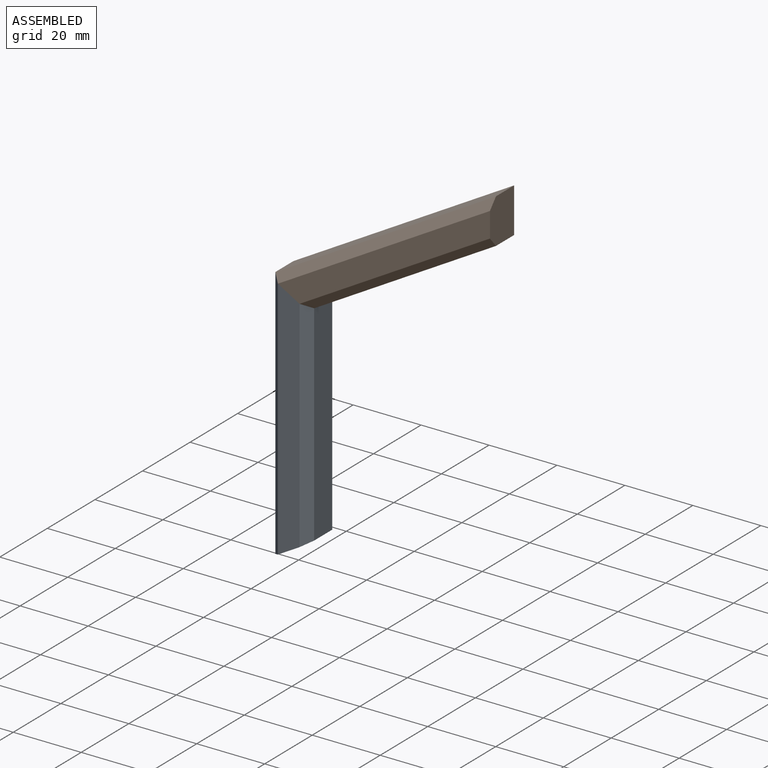
[diagram: assembled view]
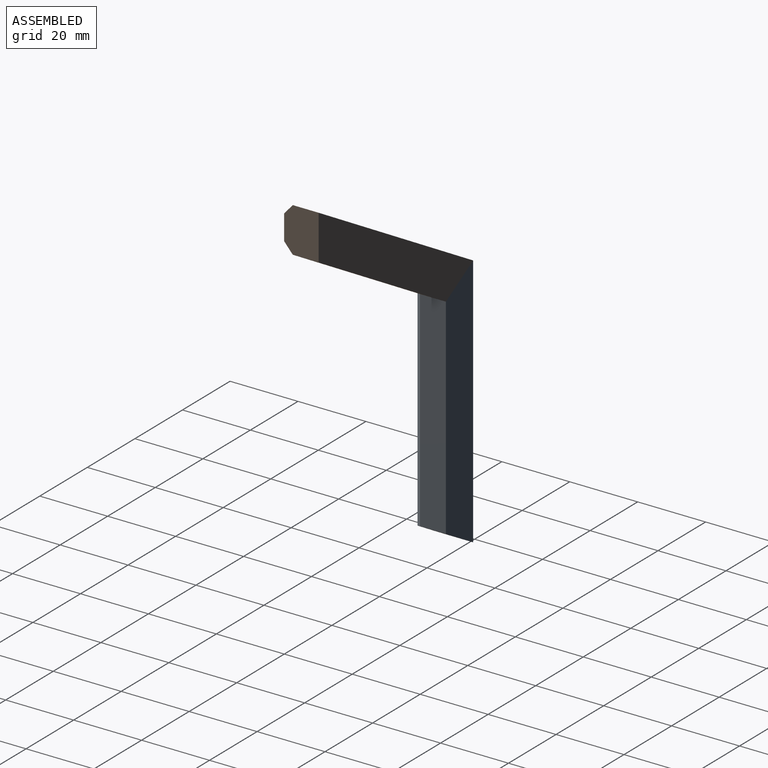
[diagram: assembled view, second angle]
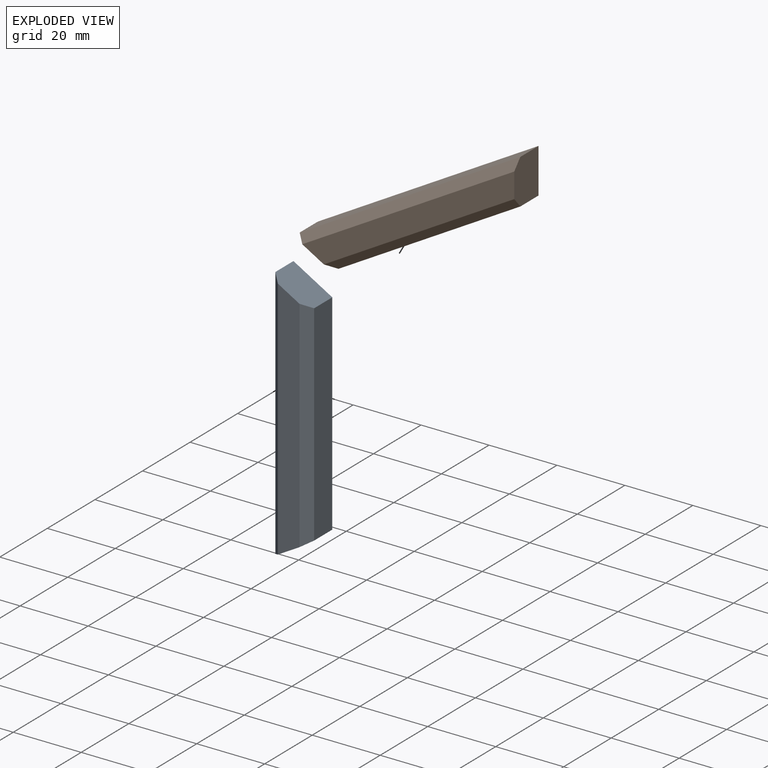
[diagram: exploded view]
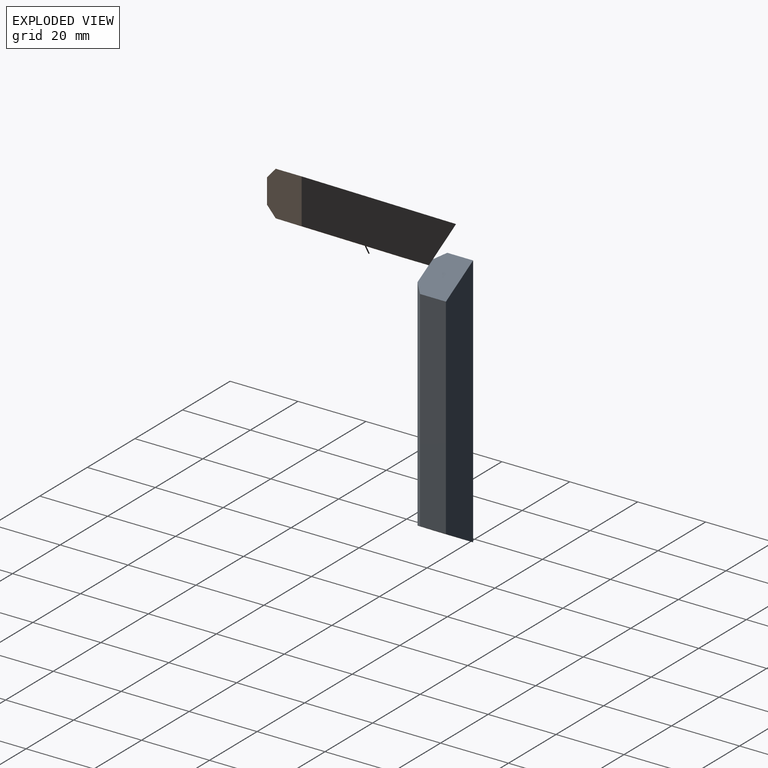
[diagram: exploded view, second angle]
ASSEMBLY  parts=2 mates=3
PART A: 8 faces, bbox 11.4x10.2x75 mm
  f0: plane 75x11.43mm, normal (0,1,0), area 781.8mm2, adj f2,f4,f6,f7
  f1: plane 72.07x6.35mm, normal (0,-1,0), area 434.3mm2, adj f3,f5,f6,f7
  f2: plane 75x7.62mm, normal (-1,0,0), area 571.5mm2, adj f0,f3,f6,f7
  f3: plane 75x2.54mm, normal (-0.71,-0.71,0), area 264.1mm2, adj f1,f2,f6,f7
  f4: plane 61.8x7.62mm, normal (1,0,0), area 470.9mm2, adj f0,f5,f6,f7
  f5: plane 64.73x2.54mm, normal (0.71,-0.71,0), area 227.3mm2, adj f1,f4,f6,f7
  f6: plane 11.43x10.16mm, normal (0.5,0,0.87), area 126.6mm2, adj f0,f1,f2,f3,f4,f5
  f7: plane 11.43x10.16mm, normal (0.5,0,-0.87), area 126.6mm2, adj f0,f1,f2,f3,f4,f5
PART B: same geometry as A
PLACE A t=(-14.27,-31.87,8.24)mm fixed
PLACE B rot(axis=(0,1,0),60deg) t=(-14.27,-31.87,8.24)mm
MATE planar A.f6 <-> B.f7  axis (0.5,0,0.87) through (-73.51,-36.7,42.44)mm
MATE planar A.f0 <-> B.f0  axis (0,1,0) through (-73.69,-31.87,8.24)mm
MATE planar B.f7 <-> A.f6  axis (-0.5,0,-0.87) through (-73.51,-36.7,42.44)mm
